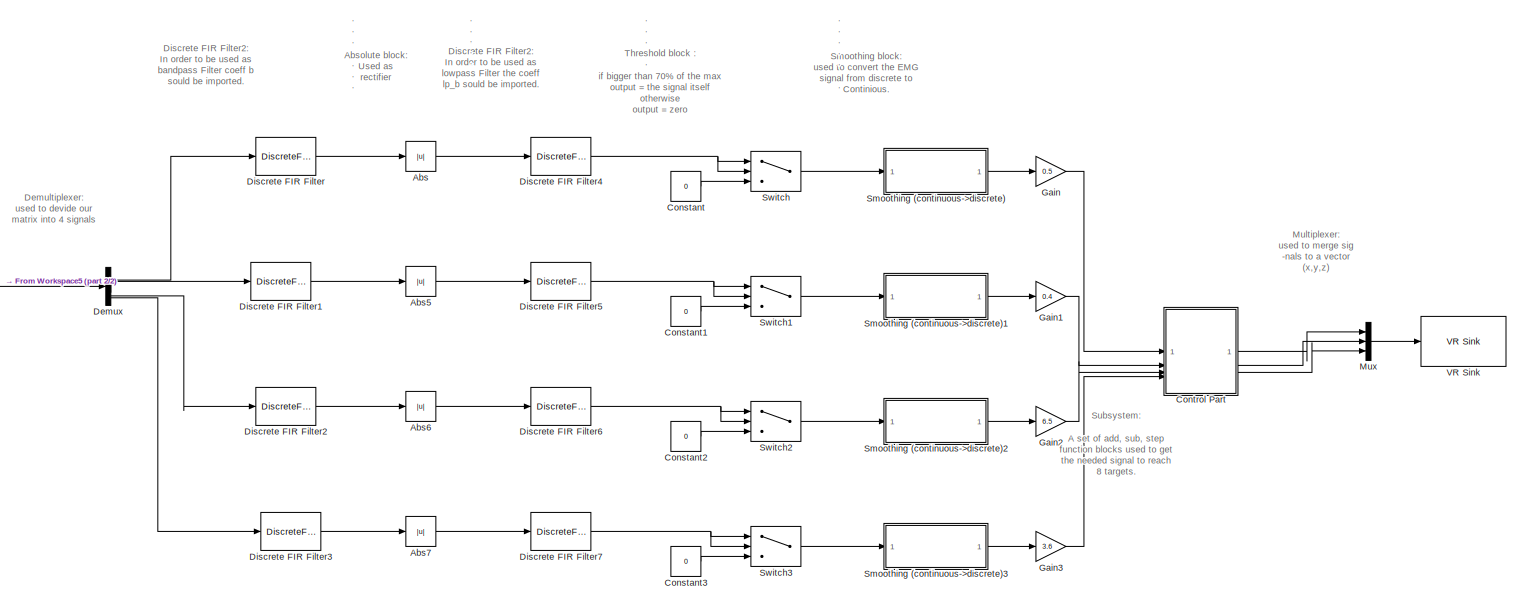
[diagram: root canvas - part 1/2, most of the canvas]
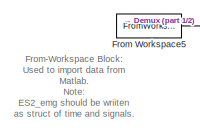
[diagram: root canvas - part 2/2, middle left region]
MODEL slx_6a0c456746e5
KIND model
CONFIG AbsTol = auto
CONFIG EnableMultiTasking = off
CONFIG FixedStep = auto
CONFIG MaxStep = auto
CONFIG MinStep = auto
CONFIG RelTol = 1e-3
CONFIG SampleTimeConstraint = Unconstrained
CONFIG SolverName = VariableStepAuto
CONFIG StartTime = 0.0
CONFIG StopTime = 30.0
BLOCK [Abs] Abs
  OutDataTypeStr = double
  SaturateOnIntegerOverflow = off
  ZeroCross = off
BLOCK [Abs] Abs5
  OutDataTypeStr = double
  SaturateOnIntegerOverflow = off
  ZeroCross = off
BLOCK [Abs] Abs6
  OutDataTypeStr = double
  SaturateOnIntegerOverflow = off
  ZeroCross = off
BLOCK [Abs] Abs7
  OutDataTypeStr = double
  SaturateOnIntegerOverflow = off
  ZeroCross = off
BLOCK [Constant] Constant
  Value = 0
BLOCK [Constant] Constant1
  Value = 0
BLOCK [Constant] Constant2
  Value = 0
BLOCK [Constant] Constant3
  Value = 0
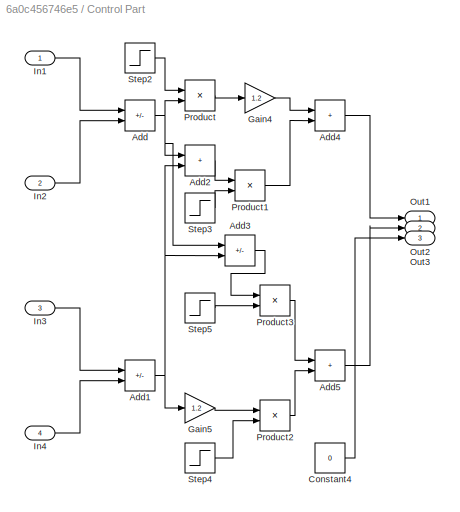
BLOCK [SubSystem] Control Part
BLOCK [Sum] Control Part/Add
  IconShape = rectangular
  Inputs = +-
BLOCK [Sum] Control Part/Add1
  IconShape = rectangular
  Inputs = +-
BLOCK [Sum] Control Part/Add2
  IconShape = rectangular
BLOCK [Sum] Control Part/Add3
  IconShape = rectangular
  Inputs = +-
BLOCK [Sum] Control Part/Add4
  IconShape = rectangular
BLOCK [Sum] Control Part/Add5
  IconShape = rectangular
BLOCK [Constant] Control Part/Constant4
  Value = 0
BLOCK [Gain] Control Part/Gain4
  Gain = 1.2
BLOCK [Gain] Control Part/Gain5
  Gain = 1.2
BLOCK [Inport] Control Part/In1
BLOCK [Inport] Control Part/In2
  Port = 2
BLOCK [Inport] Control Part/In3
  Port = 3
BLOCK [Inport] Control Part/In4
  Port = 4
BLOCK [Outport] Control Part/Out1
BLOCK [Outport] Control Part/Out2
  Port = 2
BLOCK [Outport] Control Part/Out3
  Port = 3
BLOCK [Product] Control Part/Product
BLOCK [Product] Control Part/Product1
BLOCK [Product] Control Part/Product2
BLOCK [Product] Control Part/Product3
BLOCK [Step] Control Part/Step2
  After = 0
  Before = 1
  SampleTime = 0
  Time = 15
BLOCK [Step] Control Part/Step3
  SampleTime = 0
  Time = 15
BLOCK [Step] Control Part/Step4
  After = 0
  Before = 1
  SampleTime = 0
  Time = 15
BLOCK [Step] Control Part/Step5
  SampleTime = 0
  Time = 15
BLOCK [Demux] Demux
BLOCK [DiscreteFir] Discrete FIR Filter
  Coefficients = b
  InputPortMap = u0
  OutputPortMap = o0
  SampleTime = 1/1000
BLOCK [DiscreteFir] Discrete FIR Filter1
  Coefficients = b
  InputPortMap = u0
  OutputPortMap = o0
  SampleTime = 1/1000
BLOCK [DiscreteFir] Discrete FIR Filter2
  Coefficients = b
  InputPortMap = u0
  OutputPortMap = o0
  SampleTime = 1/1000
BLOCK [DiscreteFir] Discrete FIR Filter3
  Coefficients = b
  InputPortMap = u0
  OutputPortMap = o0
  SampleTime = 1/1000
BLOCK [DiscreteFir] Discrete FIR Filter4
  Coefficients = lp_b
  InputPortMap = u0
  OutputPortMap = o0
  SampleTime = 1/1000
BLOCK [DiscreteFir] Discrete FIR Filter5
  Coefficients = lp_b
  InputPortMap = u0
  OutputPortMap = o0
  SampleTime = 1/1000
BLOCK [DiscreteFir] Discrete FIR Filter6
  Coefficients = lp_b
  InputPortMap = u0
  OutputPortMap = o0
  SampleTime = 1/1000
BLOCK [DiscreteFir] Discrete FIR Filter7
  Coefficients = lp_b
  InputPortMap = u0
  OutputPortMap = o0
  SampleTime = 1/1000
BLOCK [FromWorkspace] From Workspace5
  SampleTime = 1/1000
  VariableName = ES2_emg
BLOCK [Gain] Gain
  Gain = 0.5
BLOCK [Gain] Gain1
  Gain = 0.4
BLOCK [Gain] Gain2
  Gain = 6.5
BLOCK [Gain] Gain3
  Gain = 3.6
BLOCK [Mux] Mux
  DisplayOption = bar
  Inputs = 3
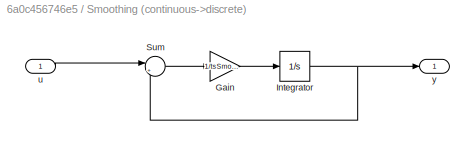
BLOCK [SubSystem] Smoothing (continuous->discrete)
BLOCK [Gain] Smoothing (continuous->discrete)/Gain
  Gain = 1/tsSmoothing
BLOCK [Integrator] Smoothing (continuous->discrete)/Integrator
  InitialCondition = smoothing0
BLOCK [Sum] Smoothing (continuous->discrete)/Sum
  Inputs = |+-
BLOCK [Inport] Smoothing (continuous->discrete)/u
BLOCK [Outport] Smoothing (continuous->discrete)/y
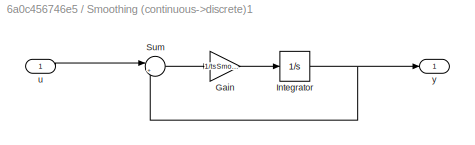
BLOCK [SubSystem] Smoothing (continuous->discrete)1
BLOCK [Gain] Smoothing (continuous->discrete)1/Gain
  Gain = 1/tsSmoothing
BLOCK [Integrator] Smoothing (continuous->discrete)1/Integrator
  InitialCondition = smoothing0
BLOCK [Sum] Smoothing (continuous->discrete)1/Sum
  Inputs = |+-
BLOCK [Inport] Smoothing (continuous->discrete)1/u
BLOCK [Outport] Smoothing (continuous->discrete)1/y
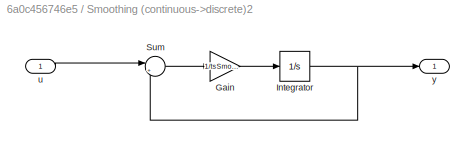
BLOCK [SubSystem] Smoothing (continuous->discrete)2
BLOCK [Gain] Smoothing (continuous->discrete)2/Gain
  Gain = 1/tsSmoothing
BLOCK [Integrator] Smoothing (continuous->discrete)2/Integrator
  InitialCondition = smoothing0
BLOCK [Sum] Smoothing (continuous->discrete)2/Sum
  Inputs = |+-
BLOCK [Inport] Smoothing (continuous->discrete)2/u
BLOCK [Outport] Smoothing (continuous->discrete)2/y
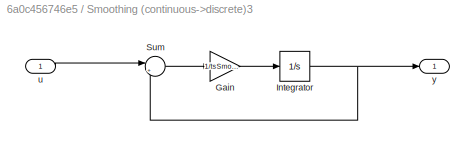
BLOCK [SubSystem] Smoothing (continuous->discrete)3
BLOCK [Gain] Smoothing (continuous->discrete)3/Gain
  Gain = 1/tsSmoothing
BLOCK [Integrator] Smoothing (continuous->discrete)3/Integrator
  InitialCondition = smoothing0
BLOCK [Sum] Smoothing (continuous->discrete)3/Sum
  Inputs = |+-
BLOCK [Inport] Smoothing (continuous->discrete)3/u
BLOCK [Outport] Smoothing (continuous->discrete)3/y
BLOCK [Switch] Switch
  Criteria = u2 > Threshold
  InputSameDT = off
  SaturateOnIntegerOverflow = off
  Threshold = 5e-4
BLOCK [Switch] Switch1
  Criteria = u2 > Threshold
  InputSameDT = off
  SaturateOnIntegerOverflow = off
  Threshold = 5e-4
BLOCK [Switch] Switch2
  Criteria = u2 > Threshold
  InputSameDT = off
  SaturateOnIntegerOverflow = off
  Threshold = 0.2
BLOCK [Switch] Switch3
  Criteria = u2 > Threshold
  InputSameDT = off
  SaturateOnIntegerOverflow = off
  Threshold = 0.08
BLOCK [Reference] VR Sink  REF=vrlib/VR Sink
  InstantiateOnLoad = on
  SourceBlock = vrlib/VR Sink
  SourceType = Virtual Reality Sink
ANNOTATION (root): . . . . . . . . . . . . . . . . . . . . . . . . . . . . . . . . . . . . . . . . . . . . . . .
ANNOTATION (root): Absolute block: Used as rectifier
ANNOTATION (root): Demultiplexer: used to devide our matrix into 4 signals
ANNOTATION (root): Discrete FIR Filter2: In order to be used as bandpass Filter coeff b sould be imported.
ANNOTATION (root): Discrete FIR Filter2: In order to be used as lowpass Filter the coeff lp_b sould be imported.
ANNOTATION (root): From-Workspace Block: Used to import data from Matlab. Note: ES2_emg should be wriiten as struct of time and signals.
ANNOTATION (root): Multiplexer: used to merge sig -nals to a vector (x,y,z)
ANNOTATION (root): Smoothing block: used to convert the EMG signal from discrete to Continious.
ANNOTATION (root): Subsystem: A set of add, sub, step function blocks used to get the needed signal to reach 8 targets.
ANNOTATION (root): Threshold block : if bigger than 70% of the max output = the signal itself otherwise output = zero
LINE Abs5:1 -> Discrete FIR Filter5:1
LINE Abs6:1 -> Discrete FIR Filter6:1
LINE Abs7:1 -> Discrete FIR Filter7:1
LINE Abs:1 -> Discrete FIR Filter4:1
LINE Constant1:1 -> Switch1:3
LINE Constant2:1 -> Switch2:3
LINE Constant3:1 -> Switch3:3
LINE Constant:1 -> Switch:3
NET Control Part/Add1:1 -> Control Part/Add2:2, Control Part/Add3:2, Control Part/Gain5:1
LINE Control Part/Add2:1 -> Control Part/Product1:1
LINE Control Part/Add3:1 -> Control Part/Product3:1
LINE Control Part/Add4:1 -> Control Part/Out1:1
LINE Control Part/Add5:1 -> Control Part/Out2:1
NET Control Part/Add:1 -> Control Part/Add2:1, Control Part/Add3:1, Control Part/Product:2
LINE Control Part/Constant4:1 -> Control Part/Out3:1
LINE Control Part/Gain4:1 -> Control Part/Add4:1
LINE Control Part/Gain5:1 -> Control Part/Product2:1
LINE Control Part/In1:1 -> Control Part/Add:1
LINE Control Part/In2:1 -> Control Part/Add:2
LINE Control Part/In3:1 -> Control Part/Add1:1
LINE Control Part/In4:1 -> Control Part/Add1:2
LINE Control Part/Product1:1 -> Control Part/Add4:2
LINE Control Part/Product2:1 -> Control Part/Add5:2
LINE Control Part/Product3:1 -> Control Part/Add5:1
LINE Control Part/Product:1 -> Control Part/Gain4:1
LINE Control Part/Step2:1 -> Control Part/Product:1
LINE Control Part/Step3:1 -> Control Part/Product1:2
LINE Control Part/Step4:1 -> Control Part/Product2:2
LINE Control Part/Step5:1 -> Control Part/Product3:2
LINE Control Part:1 -> Mux:1
LINE Control Part:2 -> Mux:2
LINE Control Part:3 -> Mux:3
LINE Demux:1 -> Discrete FIR Filter:1
LINE Demux:2 -> Discrete FIR Filter1:1
LINE Demux:3 -> Discrete FIR Filter2:1
LINE Demux:4 -> Discrete FIR Filter3:1
LINE Discrete FIR Filter1:1 -> Abs5:1
LINE Discrete FIR Filter2:1 -> Abs6:1
LINE Discrete FIR Filter3:1 -> Abs7:1
NET Discrete FIR Filter4:1 -> Switch:1, Switch:2
NET Discrete FIR Filter5:1 -> Switch1:1, Switch1:2
NET Discrete FIR Filter6:1 -> Switch2:1, Switch2:2
NET Discrete FIR Filter7:1 -> Switch3:1, Switch3:2
LINE Discrete FIR Filter:1 -> Abs:1
LINE From Workspace5:1 -> Demux:1
LINE Gain1:1 -> Control Part:2
LINE Gain2:1 -> Control Part:3
LINE Gain3:1 -> Control Part:4
LINE Gain:1 -> Control Part:1
LINE Mux:1 -> VR Sink:1
LINE Smoothing (continuous->discrete)/Gain:1 -> Smoothing (continuous->discrete)/Integrator:1
NET Smoothing (continuous->discrete)/Integrator:1 -> Smoothing (continuous->discrete)/Sum:2, Smoothing (continuous->discrete)/y:1
LINE Smoothing (continuous->discrete)/Sum:1 -> Smoothing (continuous->discrete)/Gain:1
LINE Smoothing (continuous->discrete)/u:1 -> Smoothing (continuous->discrete)/Sum:1
LINE Smoothing (continuous->discrete)1/Gain:1 -> Smoothing (continuous->discrete)1/Integrator:1
NET Smoothing (continuous->discrete)1/Integrator:1 -> Smoothing (continuous->discrete)1/Sum:2, Smoothing (continuous->discrete)1/y:1
LINE Smoothing (continuous->discrete)1/Sum:1 -> Smoothing (continuous->discrete)1/Gain:1
LINE Smoothing (continuous->discrete)1/u:1 -> Smoothing (continuous->discrete)1/Sum:1
LINE Smoothing (continuous->discrete)1:1 -> Gain1:1
LINE Smoothing (continuous->discrete)2/Gain:1 -> Smoothing (continuous->discrete)2/Integrator:1
NET Smoothing (continuous->discrete)2/Integrator:1 -> Smoothing (continuous->discrete)2/Sum:2, Smoothing (continuous->discrete)2/y:1
LINE Smoothing (continuous->discrete)2/Sum:1 -> Smoothing (continuous->discrete)2/Gain:1
LINE Smoothing (continuous->discrete)2/u:1 -> Smoothing (continuous->discrete)2/Sum:1
LINE Smoothing (continuous->discrete)2:1 -> Gain2:1
LINE Smoothing (continuous->discrete)3/Gain:1 -> Smoothing (continuous->discrete)3/Integrator:1
NET Smoothing (continuous->discrete)3/Integrator:1 -> Smoothing (continuous->discrete)3/Sum:2, Smoothing (continuous->discrete)3/y:1
LINE Smoothing (continuous->discrete)3/Sum:1 -> Smoothing (continuous->discrete)3/Gain:1
LINE Smoothing (continuous->discrete)3/u:1 -> Smoothing (continuous->discrete)3/Sum:1
LINE Smoothing (continuous->discrete)3:1 -> Gain3:1
LINE Smoothing (continuous->discrete):1 -> Gain:1
LINE Switch1:1 -> Smoothing (continuous->discrete)1:1
LINE Switch2:1 -> Smoothing (continuous->discrete)2:1
LINE Switch3:1 -> Smoothing (continuous->discrete)3:1
LINE Switch:1 -> Smoothing (continuous->discrete):1
note: NET lines group one-source signal fan-out (src -> all destinations, sorted); 1:1 wires keep LINE
